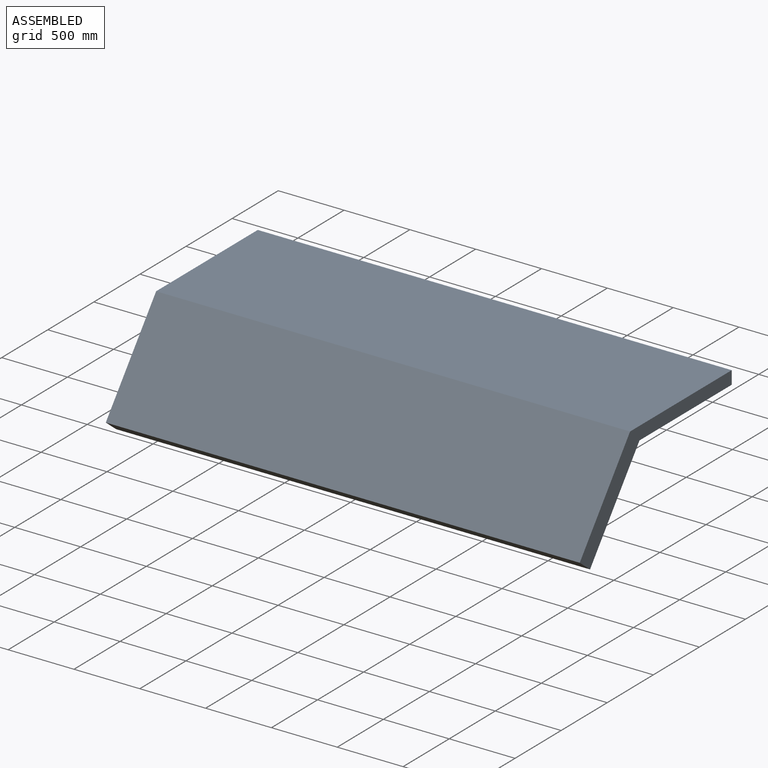
[diagram: assembled view]
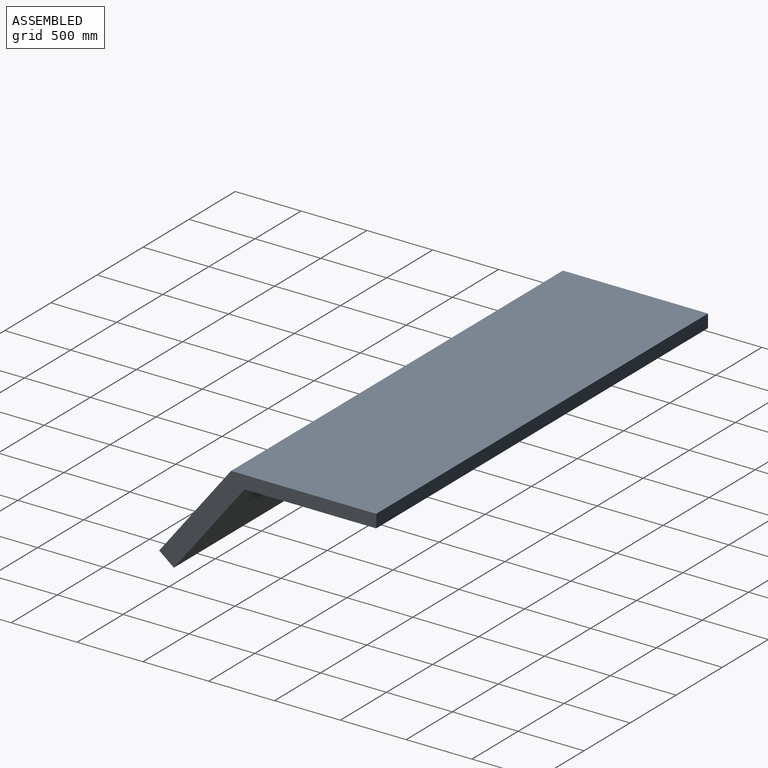
[diagram: assembled view, second angle]
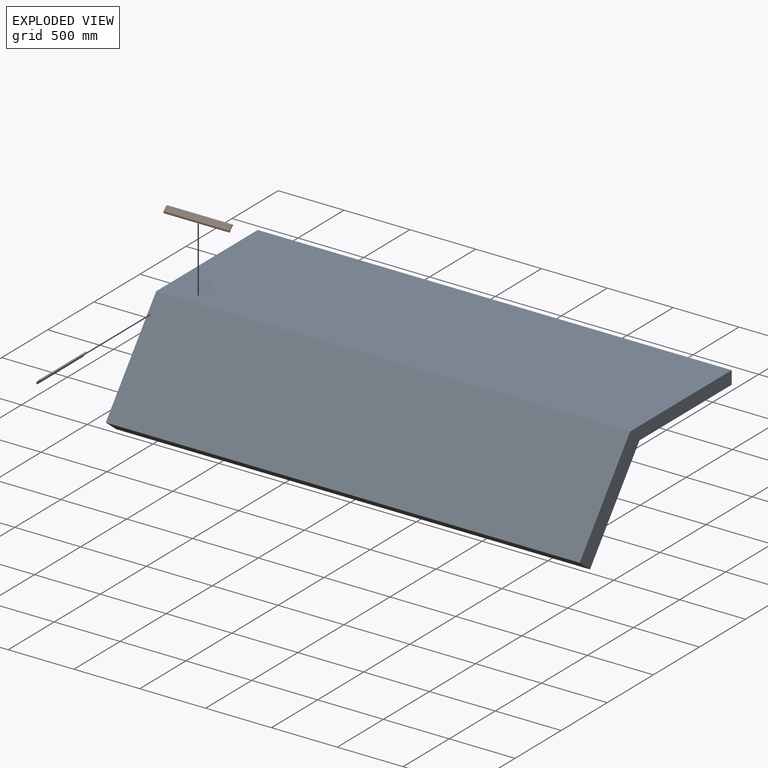
[diagram: exploded view]
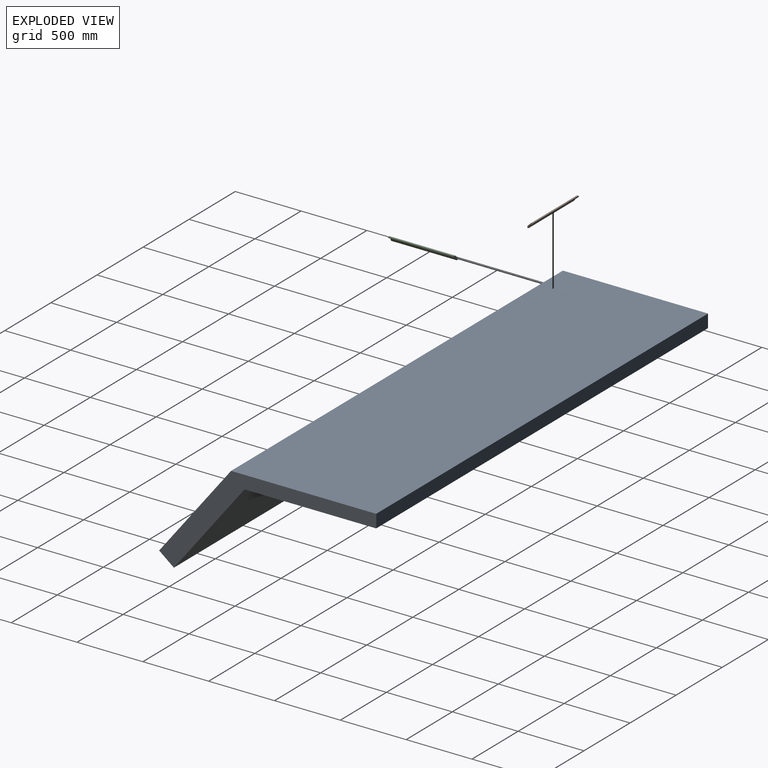
[diagram: exploded view, second angle]
ASSEMBLY  parts=3 mates=2
PART A: 8 faces, bbox 3600x1648.4x780.7 mm
  f0: plane 3600x111.72mm, normal (0,-0.62,-0.79), area 512190.1mm2, adj f1,f5,f6,f7
  f1: plane 3600x680.72mm, normal (0,0.79,-0.62), area 3120680.1mm2, adj f0,f2,f6,f7
  f2: plane 3600x1000mm, normal (0,0,-1), area 3600000mm2, adj f1,f3,f6,f7
  f3: plane 3600x100mm, normal (0,1,0), area 360000mm2, adj f2,f4,f6,f7
  f4: plane 3600x1102.33mm, normal (0,0,1), area 3968401.7mm2, adj f3,f5,f6,f7
  f5: plane 3600x692.62mm, normal (0,-0.79,0.62), area 3175279.5mm2, adj f0,f4,f6,f7
  f6: plane 1648.44x780.72mm, normal (1,0,0), area 229527.5mm2, adj f0,f1,f2,f3,f4,f5
  f7: plane 1648.44x780.72mm, normal (-1,0,0), area 229527.5mm2, adj f0,f1,f2,f3,f4,f5
PART B: 8 faces, bbox 40x40x500 mm
  f0: plane 500x8.49mm, normal (0,1,0), area 4242.6mm2, adj f1,f5,f6,f7
  f1: plane 500x12.73mm, normal (-1,0,0), area 6364mm2, adj f0,f2,f6,f7
  f2: plane 500x27.27mm, normal (-0.71,-0.71,0), area 19284.3mm2, adj f1,f3,f6,f7
  f3: plane 500x12.73mm, normal (0,-1,0), area 6364mm2, adj f2,f4,f6,f7
  f4: plane 500x8.49mm, normal (1,0,0), area 4242.6mm2, adj f3,f5,f6,f7
  f5: cylinder r=44.38mm len=500mm, axis (0,0,-1), area 23346.1mm2, adj f0,f4,f6,f7
  f6: plane 40x40mm, normal (0,0,1), area 550.7mm2, adj f0,f1,f2,f3,f4,f5
  f7: plane 40x40mm, normal (0,0,-1), area 550.7mm2, adj f0,f1,f2,f3,f4,f5
PART C: same geometry as B
PLACE A t=(-2237.87,-536.8,213.51)mm fixed
PLACE B rot(axis=(-0.58,-0.58,0.58),120deg) t=(-1737.87,-26.57,1643.51)mm
PLACE C rot(axis=(-1,0,0),90deg) t=(-2217.87,-54.3,1643.51)mm
MATE fastened B.f3 <-> A.f2  axis (0,0,1) through (-2237.87,-19.3,1663.51)mm
MATE fastened C.f3 <-> A.f2  axis (0,0,1) through (-2197.87,-54.3,1663.51)mm
